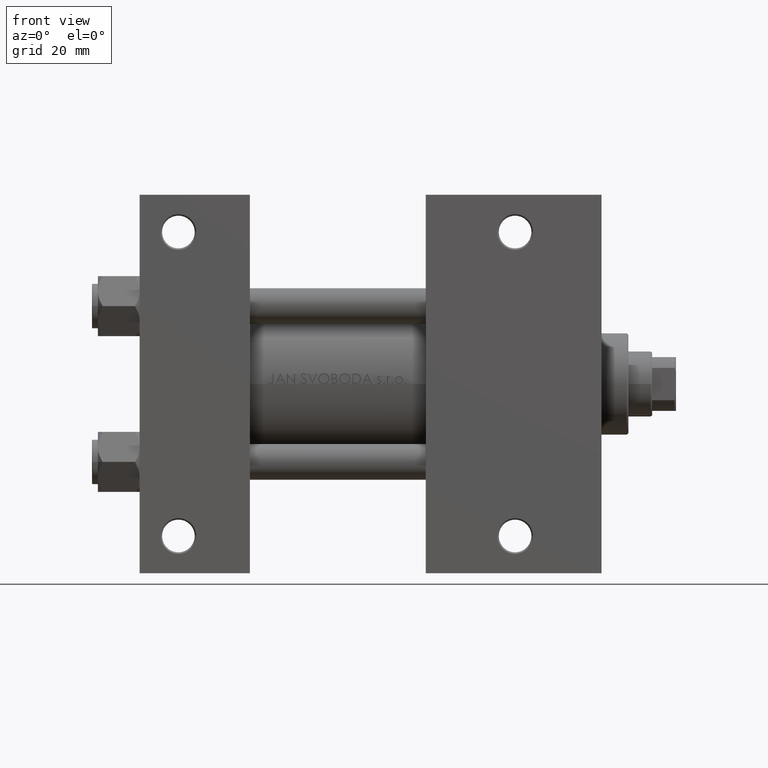
[diagram: clean part render]
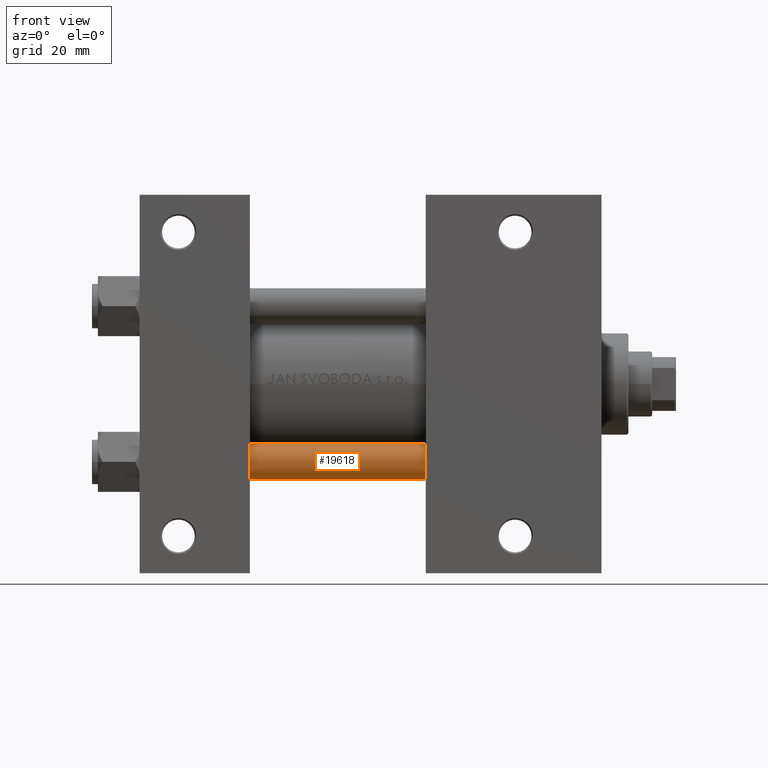
[diagram: same view with one face highlighted and labeled with its STEP entity id]
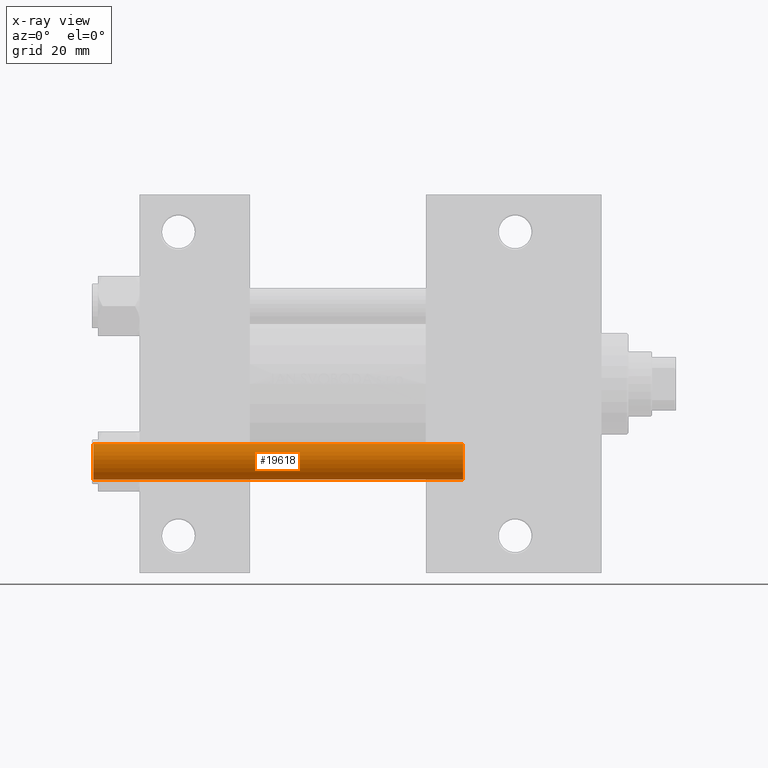
[diagram: x-ray of the same camera — body ghosted, the highlighted face saturated]
A machine part, front view. The second image highlights one B-rep face of the part: STEP entity #19618.
The next image is the same camera in x-ray: the body ghosted, the highlighted face saturated — about 0% of this face is hidden behind the body in this view.
In plain terms, the highlighted cylindrical surface (edge-blend (fillet) strip) has radius 6 mm, axis along (-1, 0, 0).
Its self-contained STEP definition (entity closure, byte-faithful):
#449 = LINE ( 'NONE', #15656, #4672 ) ;
#481 = CARTESIAN_POINT ( 'NONE',  ( 0.000000000000000000, 0.000000000000000000, 125.0000000000000000 ) ) ;
#1382 = ORIENTED_EDGE ( 'NONE', *, *, #14736, .T. ) ;
#4006 = CARTESIAN_POINT ( 'NONE',  ( -6.000000000000000888, 0.000000000000000000, 124.5000000000000000 ) ) ;
#4672 = VECTOR ( 'NONE', #30845, 1000.000000000000000 ) ;
#5859 = ORIENTED_EDGE ( 'NONE', *, *, #31709, .T. ) ;
#7418 = VERTEX_POINT ( 'NONE', #13093 ) ;
#7969 = FACE_OUTER_BOUND ( 'NONE', #34407, .T. ) ;
#9539 = CARTESIAN_POINT ( 'NONE',  ( 6.000000000000000888, 7.347880794884120722E-16, 124.5000000000000000 ) ) ;
#9569 = EDGE_CURVE ( 'NONE', #23323, #7418, #449, .T. ) ;
#9900 = VECTOR ( 'NONE', #41150, 1000.000000000000000 ) ;
#11423 = CARTESIAN_POINT ( 'NONE',  ( 0.000000000000000000, 0.000000000000000000, 0.4999999999999865663 ) ) ;
#11956 = CIRCLE ( 'NONE', #19900, 6.000000000000000888 ) ;
#13093 = CARTESIAN_POINT ( 'NONE',  ( 6.000000000000000888, 7.347880794884120722E-16, 0.4999999999999865663 ) ) ;
#14689 = EDGE_CURVE ( 'NONE', #43238, #48323, #22454, .T. ) ;
#14736 = EDGE_CURVE ( 'NONE', #43238, #23323, #31359, .T. ) ;
#15656 = CARTESIAN_POINT ( 'NONE',  ( 6.000000000000000888, 7.347880794884120722E-16, 125.0000000000000000 ) ) ;
#16233 = DIRECTION ( 'NONE',  ( 0.000000000000000000, 0.000000000000000000, -1.000000000000000000 ) ) ;
#19618 = ADVANCED_FACE ( 'NONE', ( #7969 ), #23145, .T. ) ;
#19900 = AXIS2_PLACEMENT_3D ( 'NONE', #11423, #38306, #30338 ) ;
#20370 = AXIS2_PLACEMENT_3D ( 'NONE', #481, #27629, #42820 ) ;
#22454 = LINE ( 'NONE', #25951, #9900 ) ;
#23145 = CYLINDRICAL_SURFACE ( 'NONE', #20370, 6.000000000000000888 ) ;
#23323 = VERTEX_POINT ( 'NONE', #9539 ) ;
#25951 = CARTESIAN_POINT ( 'NONE',  ( -6.000000000000000888, 0.000000000000000000, 125.0000000000000000 ) ) ;
#27368 = ORIENTED_EDGE ( 'NONE', *, *, #14689, .F. ) ;
#27629 = DIRECTION ( 'NONE',  ( -0.000000000000000000, -0.000000000000000000, -1.000000000000000000 ) ) ;
#30338 = DIRECTION ( 'NONE',  ( 1.000000000000000000, 0.000000000000000000, 0.000000000000000000 ) ) ;
#30845 = DIRECTION ( 'NONE',  ( -0.000000000000000000, -0.000000000000000000, -1.000000000000000000 ) ) ;
#31175 = CARTESIAN_POINT ( 'NONE',  ( 0.000000000000000000, 0.000000000000000000, 124.5000000000000000 ) ) ;
#31359 = CIRCLE ( 'NONE', #40889, 6.000000000000000888 ) ;
#31418 = DIRECTION ( 'NONE',  ( 1.000000000000000000, 0.000000000000000000, 0.000000000000000000 ) ) ;
#31709 = EDGE_CURVE ( 'NONE', #7418, #48323, #11956, .T. ) ;
#34407 = EDGE_LOOP ( 'NONE', ( #1382, #38275, #5859, #27368 ) ) ;
#38275 = ORIENTED_EDGE ( 'NONE', *, *, #9569, .T. ) ;
#38306 = DIRECTION ( 'NONE',  ( -0.000000000000000000, -0.000000000000000000, 1.000000000000000000 ) ) ;
#39762 = CARTESIAN_POINT ( 'NONE',  ( -6.000000000000000888, 0.000000000000000000, 0.4999999999999865663 ) ) ;
#40889 = AXIS2_PLACEMENT_3D ( 'NONE', #31175, #16233, #31418 ) ;
#41150 = DIRECTION ( 'NONE',  ( -0.000000000000000000, -0.000000000000000000, -1.000000000000000000 ) ) ;
#42820 = DIRECTION ( 'NONE',  ( -1.000000000000000000, 0.000000000000000000, 0.000000000000000000 ) ) ;
#43238 = VERTEX_POINT ( 'NONE', #4006 ) ;
#48323 = VERTEX_POINT ( 'NONE', #39762 ) ;